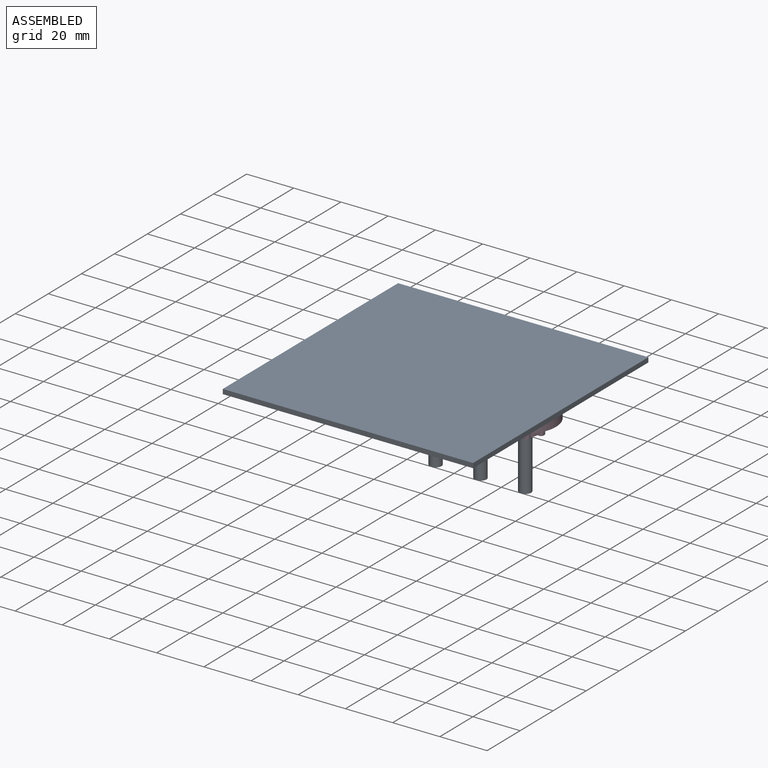
[diagram: assembled view]
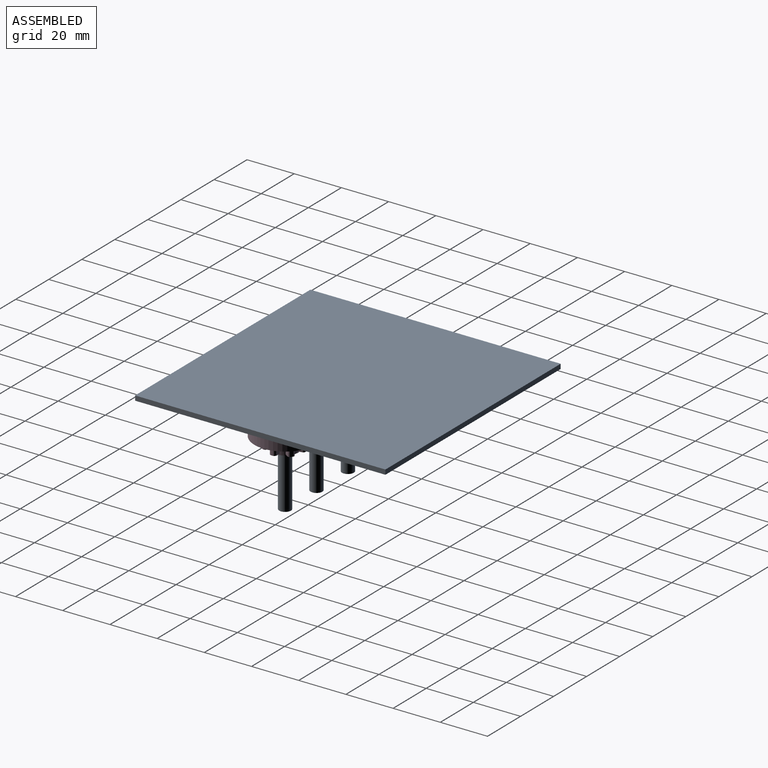
[diagram: assembled view, second angle]
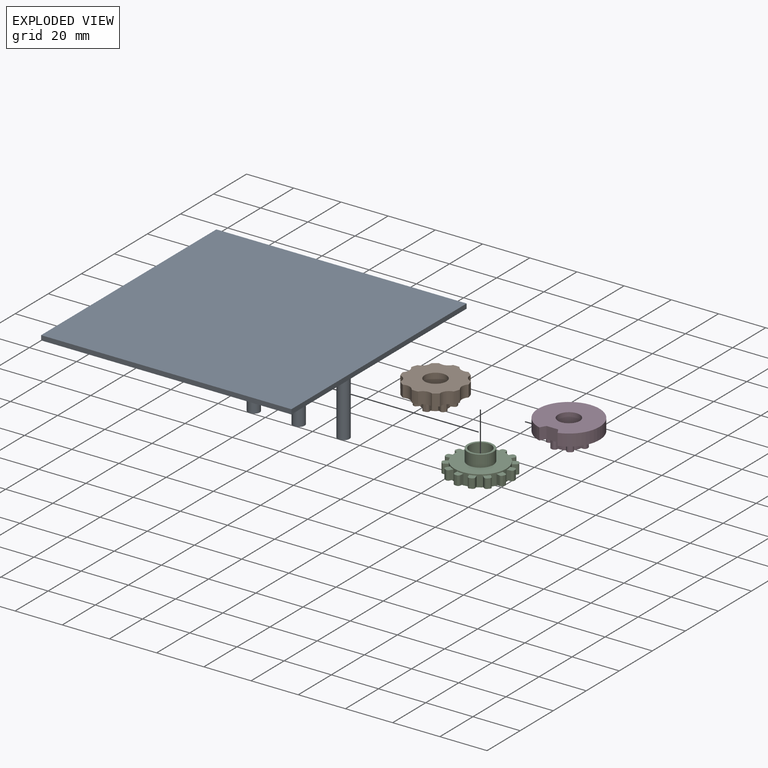
[diagram: exploded view]
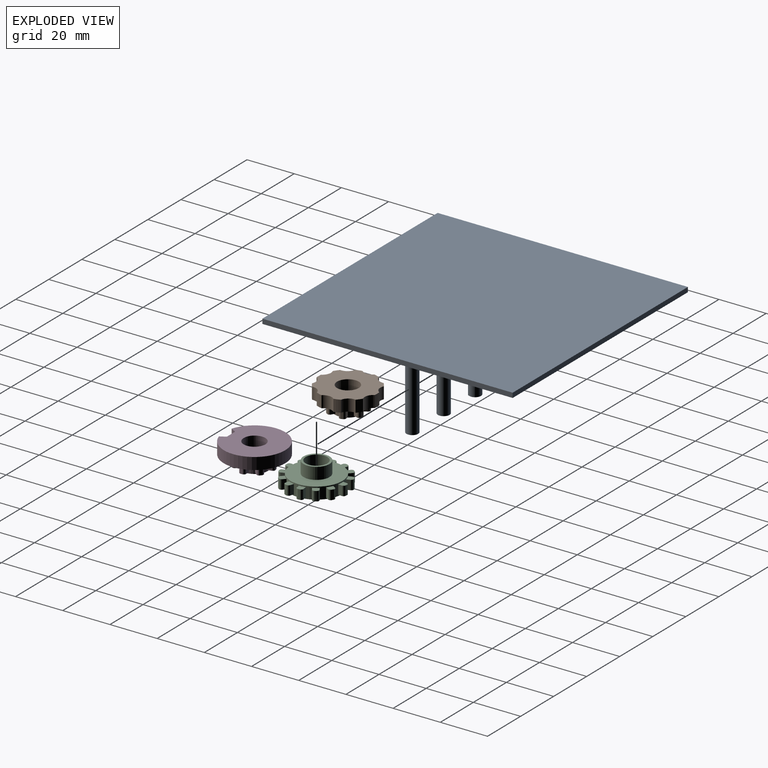
[diagram: exploded view, second angle]
ASSEMBLY  parts=4 mates=2
PART A: 12 faces, bbox 106.1x106.1x35 mm
  f0: plane 106.07x2mm, normal (1,0,0), area 212.1mm2, adj f1,f3,f4,f5
  f1: plane 106.07x2mm, normal (0,1,0), area 212.1mm2, adj f0,f2,f4,f5
  f2: plane 106.07x2mm, normal (-1,0,0), area 212.1mm2, adj f1,f3,f4,f5
  f3: plane 106.07x2mm, normal (0,-1,0), area 212.1mm2, adj f0,f2,f4,f5
  f4: plane 106.07x106.07mm, normal (0,0,1), area 11191.1mm2, adj f0,f1,f2,f3,f6,f8,f10
  f5: plane 106.07x106.07mm, normal (0,0,-1), area 11250mm2, adj f0,f1,f2,f3
  f6: cylinder r=2.5mm len=33mm, axis (0,0,-1), area 518.4mm2, adj f4,f7
  f7: plane 5x5mm, normal (0,0,1), area 19.6mm2, adj f6
  f8: cylinder r=2.5mm len=33mm, axis (0,0,-1), area 518.4mm2, adj f4,f9
  f9: plane 5x5mm, normal (0,0,1), area 19.6mm2, adj f8
  f10: cylinder r=2.5mm len=33mm, axis (0,0,-1), area 518.4mm2, adj f4,f11
  f11: plane 5x5mm, normal (0,0,1), area 19.6mm2, adj f10
PART B: 67 faces, bbox 24.5x10x25 mm
  f0: cylinder r=5.5mm len=11mm, axis (0,1,0), area 86.9mm2, adj f12,f23,f25,f26,f27,f29,f30,f31
  f1: cylinder r=12.5mm len=5mm, axis (0,-1,0), area 13.7mm2, adj f11,f12,f19,f22
  f2: cylinder r=12.5mm len=5mm, axis (0,-1,0), area 13.7mm2, adj f11,f12,f21,f22
  f3: cylinder r=12.5mm len=5mm, axis (0,-1,0), area 13.7mm2, adj f11,f12,f13,f21
  f4: cylinder r=12.5mm len=5mm, axis (0,-1,0), area 13.7mm2, adj f11,f12,f15,f20
  f5: cylinder r=12.5mm len=5mm, axis (0,-1,0), area 13.7mm2, adj f11,f12,f19,f20
  f6: cylinder r=12.5mm len=5mm, axis (0,-1,0), area 13.7mm2, adj f11,f12,f14,f18
  f7: cylinder r=12.5mm len=5mm, axis (0,-1,0), area 13.7mm2, adj f11,f12,f17,f18
  f8: cylinder r=12.5mm len=5mm, axis (0,-1,0), area 13.7mm2, adj f11,f12,f16,f17
  f9: cylinder r=12.5mm len=5mm, axis (0,-1,0), area 13.7mm2, adj f11,f12,f15,f16
  f10: cylinder r=12.5mm len=5mm, axis (0,-1,0), area 13.7mm2, adj f11,f12,f13,f14
  f11: plane 25x24.48mm, normal (0,1,0), area 381.1mm2, adj f1,f2,f3,f4,f5,f6,f7,f8
  f12: plane 25x24.48mm, normal (0,-1,0), area 307.2mm2, adj f0,f1,f2,f3,f4,f5,f6,f7
  f13: cylinder r=3.75mm len=5.08mm, axis (0,1,0), area 27.9mm2, adj f3,f10,f11,f12
  f14: cylinder r=3.75mm len=5mm, axis (0,1,0), area 27.9mm2, adj f6,f10,f11,f12
  f15: cylinder r=3.75mm len=5.08mm, axis (0,1,0), area 27.9mm2, adj f4,f9,f11,f12
  f16: cylinder r=3.75mm len=5mm, axis (0,1,0), area 27.9mm2, adj f8,f9,f11,f12
  f17: cylinder r=3.75mm len=5mm, axis (0,1,0), area 27.9mm2, adj f7,f8,f11,f12
  f18: cylinder r=3.75mm len=5mm, axis (0,1,0), area 27.9mm2, adj f6,f7,f11,f12
  f19: cylinder r=3.75mm len=5mm, axis (0,1,0), area 27.9mm2, adj f1,f5,f11,f12
  f20: cylinder r=3.75mm len=5mm, axis (0,1,0), area 27.9mm2, adj f4,f5,f11,f12
  f21: cylinder r=3.75mm len=5mm, axis (0,1,0), area 27.9mm2, adj f2,f3,f11,f12
  f22: cylinder r=3.75mm len=5mm, axis (0,1,0), area 27.9mm2, adj f1,f2,f11,f12
  f23: plane 11x11mm, normal (0,-1,0), area 28.6mm2, adj f0,f52
  f24: plane 4.5x0.7mm, normal (1,0,0), area 3.2mm2, adj f12,f27,f65,f66
  f25: plane 4.5x1.67mm, normal (0,0,1), area 7.5mm2, adj f0,f12,f27,f65
  f26: plane 4.5x1.67mm, normal (0,0,-1), area 7.5mm2, adj f0,f12,f27,f66
  f27: plane 2.7x2.67mm, normal (0,-1,0), area 6.5mm2, adj f0,f24,f25,f26,f65,f66
  f28: plane 4.5x0.55mm, normal (0.62,0,-0.78), area 3.2mm2, adj f12,f31,f63,f64
  f29: plane 4.5x1.3mm, normal (0.78,0,0.62), area 7.5mm2, adj f0,f12,f31,f64
  f30: plane 4.5x1.3mm, normal (-0.78,0,-0.62), area 7.5mm2, adj f0,f12,f31,f63
  f31: plane 3.37x3.36mm, normal (0,-1,0), area 6.5mm2, adj f0,f28,f29,f30,f63,f64
  f32: plane 4.5x0.68mm, normal (-0.22,0,-0.97), area 3.1mm2, adj f12,f35,f61,f62
  f33: plane 4.5x1.63mm, normal (0.97,0,-0.22), area 7.5mm2, adj f0,f12,f35,f62
  f34: plane 4.5x1.63mm, normal (-0.97,0,0.22), area 7.5mm2, adj f0,f12,f35,f61
  f35: plane 3.03x3mm, normal (0,-1,0), area 6.5mm2, adj f0,f32,f33,f34,f61,f62
  f36: plane 4.5x0.63mm, normal (-0.9,0,-0.43), area 3.1mm2, adj f12,f39,f59,f60
  f37: plane 4.5x1.5mm, normal (0.43,0,-0.9), area 7.5mm2, adj f0,f12,f39,f60
  f38: plane 4.5x1.5mm, normal (-0.43,0,0.9), area 7.5mm2, adj f0,f12,f39,f59
  f39: plane 3.26x3.24mm, normal (0,-1,0), area 6.5mm2, adj f0,f36,f37,f38,f59,f60
  f40: plane 4.5x0.63mm, normal (-0.9,0,0.43), area 3.1mm2, adj f12,f43,f57,f58
  f41: plane 4.5x1.5mm, normal (-0.43,0,-0.9), area 7.5mm2, adj f0,f12,f43,f58
  f42: plane 4.5x1.5mm, normal (0.43,0,0.9), area 7.5mm2, adj f0,f12,f43,f57
  f43: plane 3.26x3.24mm, normal (0,-1,0), area 6.5mm2, adj f0,f40,f41,f42,f57,f58
  f44: plane 4.5x0.68mm, normal (-0.22,0,0.97), area 3.1mm2, adj f12,f47,f55,f56
  f45: plane 4.5x1.63mm, normal (-0.97,0,-0.22), area 7.5mm2, adj f0,f12,f47,f56
  f46: plane 4.5x1.63mm, normal (0.97,0,0.22), area 7.5mm2, adj f0,f12,f47,f55
  f47: plane 3.03x3mm, normal (0,-1,0), area 6.5mm2, adj f0,f44,f45,f46,f55,f56
  f48: plane 4.5x0.55mm, normal (0.62,0,0.78), area 3.2mm2, adj f12,f51,f53,f54
  f49: plane 4.5x1.3mm, normal (-0.78,0,0.62), area 7.5mm2, adj f0,f12,f51,f54
  f50: plane 4.5x1.3mm, normal (0.78,0,-0.62), area 7.5mm2, adj f0,f12,f51,f53
  f51: plane 3.37x3.36mm, normal (0,-1,0), area 6.5mm2, adj f0,f48,f49,f50,f53,f54
  f52: cylinder r=4.6mm len=10mm, axis (0,-1,0), area 289mm2, adj f11,f23
  f53: cylinder r=1mm len=4.5mm, axis (0,1,0), area 7.1mm2, adj f12,f48,f50,f51
  f54: cylinder r=1mm len=4.5mm, axis (0,-1,0), area 7.1mm2, adj f12,f48,f49,f51
  f55: cylinder r=1mm len=4.5mm, axis (0,1,0), area 7.1mm2, adj f12,f44,f46,f47
  f56: cylinder r=1mm len=4.5mm, axis (0,-1,0), area 7.1mm2, adj f12,f44,f45,f47
  f57: cylinder r=1mm len=4.5mm, axis (0,1,0), area 7.1mm2, adj f12,f40,f42,f43
  f58: cylinder r=1mm len=4.5mm, axis (0,-1,0), area 7.1mm2, adj f12,f40,f41,f43
  f59: cylinder r=1mm len=4.5mm, axis (0,1,0), area 7.1mm2, adj f12,f36,f38,f39
  f60: cylinder r=1mm len=4.5mm, axis (0,-1,0), area 7.1mm2, adj f12,f36,f37,f39
  f61: cylinder r=1mm len=4.5mm, axis (0,1,0), area 7.1mm2, adj f12,f32,f34,f35
  f62: cylinder r=1mm len=4.5mm, axis (0,-1,0), area 7.1mm2, adj f12,f32,f33,f35
  f63: cylinder r=1mm len=4.5mm, axis (0,1,0), area 7.1mm2, adj f12,f28,f30,f31
  f64: cylinder r=1mm len=4.5mm, axis (0,-1,0), area 7.1mm2, adj f12,f28,f29,f31
  f65: cylinder r=1mm len=4.5mm, axis (0,-1,0), area 7.1mm2, adj f12,f24,f25,f27
  f66: cylinder r=1mm len=4.5mm, axis (0,1,0), area 7.1mm2, adj f12,f24,f26,f27
PART C: 104 faces, bbox 27x10x26.5 mm
  f0: cylinder r=11mm len=22mm, axis (0,-1,0), area 194mm2, adj f1,f2,f4,f5,f6,f7,f11,f12
  f1: plane 22x22mm, normal (0,1,0), area 285.1mm2, adj f0,f101
  f2: plane 22x22mm, normal (0,-1,0), area 313.7mm2, adj f0,f103
  f3: plane 4x0.7mm, normal (1,0,0), area 2.8mm2, adj f6,f7,f8,f9
  f4: plane 4x1.58mm, normal (0,0,1), area 6.3mm2, adj f0,f6,f7,f8
  f5: plane 4x1.58mm, normal (0,0,-1), area 6.3mm2, adj f0,f6,f7,f9
  f6: plane 2.7x2.58mm, normal (0,1,0), area 6.4mm2, adj f0,f3,f4,f5,f8,f9
  f7: plane 2.7x2.58mm, normal (0,-1,0), area 6.4mm2, adj f0,f3,f4,f5,f8,f9
  f8: cylinder r=1mm len=4mm, axis (0,1,0), area 6.3mm2, adj f3,f4,f6,f7
  f9: cylinder r=1mm len=4mm, axis (0,-1,0), area 6.3mm2, adj f3,f5,f6,f7
  f10: plane 4x0.63mm, normal (0.9,0,0.43), area 2.8mm2, adj f13,f14,f15,f16
  f11: plane 4x1.43mm, normal (-0.43,0,0.9), area 6.3mm2, adj f0,f13,f14,f15
  f12: plane 4x1.43mm, normal (0.43,0,-0.9), area 6.3mm2, adj f0,f13,f14,f16
  f13: plane 3.22x3.16mm, normal (0,1,0), area 6.4mm2, adj f0,f10,f11,f12,f15,f16
  f14: plane 3.22x3.16mm, normal (0,-1,0), area 6.4mm2, adj f0,f10,f11,f12,f15,f16
  f15: cylinder r=1mm len=4mm, axis (0,1,0), area 6.3mm2, adj f10,f11,f13,f14
  f16: cylinder r=1mm len=4mm, axis (0,-1,0), area 6.3mm2, adj f10,f12,f13,f14
  f17: plane 4x0.55mm, normal (0.62,0,0.78), area 2.8mm2, adj f20,f21,f22,f23
  f18: plane 4x1.24mm, normal (-0.78,0,0.62), area 6.3mm2, adj f0,f20,f21,f22
  f19: plane 4x1.24mm, normal (0.78,0,-0.62), area 6.3mm2, adj f0,f20,f21,f23
  f20: plane 3.32x3.3mm, normal (0,1,0), area 6.4mm2, adj f0,f17,f18,f19,f22,f23
  f21: plane 3.32x3.3mm, normal (0,-1,0), area 6.4mm2, adj f0,f17,f18,f19,f22,f23
  f22: cylinder r=1mm len=4mm, axis (0,1,0), area 6.3mm2, adj f17,f18,f20,f21
  f23: cylinder r=1mm len=4mm, axis (0,-1,0), area 6.3mm2, adj f17,f19,f20,f21
  f24: plane 4x0.68mm, normal (0.22,0,0.97), area 2.8mm2, adj f27,f28,f29,f30
  f25: plane 4x1.54mm, normal (-0.97,0,0.22), area 6.3mm2, adj f0,f27,f28,f29
  f26: plane 4x1.54mm, normal (0.97,0,-0.22), area 6.3mm2, adj f0,f27,f28,f30
  f27: plane 3.01x2.92mm, normal (0,1,0), area 6.4mm2, adj f0,f24,f25,f26,f29,f30
  f28: plane 3.01x2.92mm, normal (0,-1,0), area 6.4mm2, adj f0,f24,f25,f26,f29,f30
  f29: cylinder r=1mm len=4mm, axis (0,1,0), area 6.3mm2, adj f24,f25,f27,f28
  f30: cylinder r=1mm len=4mm, axis (0,-1,0), area 6.3mm2, adj f24,f26,f27,f28
  f31: plane 4x0.68mm, normal (-0.22,0,0.97), area 2.8mm2, adj f34,f35,f36,f37
  f32: plane 4x1.54mm, normal (-0.97,0,-0.22), area 6.3mm2, adj f0,f34,f35,f36
  f33: plane 4x1.54mm, normal (0.97,0,0.22), area 6.3mm2, adj f0,f34,f35,f37
  f34: plane 3.01x2.92mm, normal (0,1,0), area 6.4mm2, adj f0,f31,f32,f33,f36,f37
  f35: plane 3.01x2.92mm, normal (0,-1,0), area 6.4mm2, adj f0,f31,f32,f33,f36,f37
  f36: cylinder r=1mm len=4mm, axis (0,1,0), area 6.3mm2, adj f31,f32,f34,f35
  f37: cylinder r=1mm len=4mm, axis (0,-1,0), area 6.3mm2, adj f31,f33,f34,f35
  f38: plane 4x0.55mm, normal (-0.62,0,0.78), area 2.8mm2, adj f41,f42,f43,f44
  f39: plane 4x1.24mm, normal (-0.78,0,-0.62), area 6.3mm2, adj f0,f41,f42,f43
  f40: plane 4x1.24mm, normal (0.78,0,0.62), area 6.3mm2, adj f0,f41,f42,f44
  f41: plane 3.32x3.3mm, normal (0,1,0), area 6.4mm2, adj f0,f38,f39,f40,f43,f44
  f42: plane 3.32x3.3mm, normal (0,-1,0), area 6.4mm2, adj f0,f38,f39,f40,f43,f44
  f43: cylinder r=1mm len=4mm, axis (0,1,0), area 6.3mm2, adj f38,f39,f41,f42
  f44: cylinder r=1mm len=4mm, axis (0,-1,0), area 6.3mm2, adj f38,f40,f41,f42
  f45: plane 4x0.63mm, normal (-0.9,0,0.43), area 2.8mm2, adj f48,f49,f50,f51
  f46: plane 4x1.43mm, normal (-0.43,0,-0.9), area 6.3mm2, adj f0,f48,f49,f50
  f47: plane 4x1.43mm, normal (0.43,0,0.9), area 6.3mm2, adj f0,f48,f49,f51
  f48: plane 3.22x3.16mm, normal (0,1,0), area 6.4mm2, adj f0,f45,f46,f47,f50,f51
  f49: plane 3.22x3.16mm, normal (0,-1,0), area 6.4mm2, adj f0,f45,f46,f47,f50,f51
  f50: cylinder r=1mm len=4mm, axis (0,1,0), area 6.3mm2, adj f45,f46,f48,f49
  f51: cylinder r=1mm len=4mm, axis (0,-1,0), area 6.3mm2, adj f45,f47,f48,f49
  f52: plane 4x0.7mm, normal (-1,0,0), area 2.8mm2, adj f55,f56,f57,f58
  f53: plane 4x1.58mm, normal (0,0,-1), area 6.3mm2, adj f0,f55,f56,f57
  f54: plane 4x1.58mm, normal (0,0,1), area 6.3mm2, adj f0,f55,f56,f58
  f55: plane 2.7x2.58mm, normal (0,1,0), area 6.4mm2, adj f0,f52,f53,f54,f57,f58
  f56: plane 2.7x2.58mm, normal (0,-1,0), area 6.4mm2, adj f0,f52,f53,f54,f57,f58
  f57: cylinder r=1mm len=4mm, axis (0,1,0), area 6.3mm2, adj f52,f53,f55,f56
  f58: cylinder r=1mm len=4mm, axis (0,-1,0), area 6.3mm2, adj f52,f54,f55,f56
  f59: plane 4x0.63mm, normal (-0.9,0,-0.43), area 2.8mm2, adj f62,f63,f64,f65
  f60: plane 4x1.43mm, normal (0.43,0,-0.9), area 6.3mm2, adj f0,f62,f63,f64
  f61: plane 4x1.43mm, normal (-0.43,0,0.9), area 6.3mm2, adj f0,f62,f63,f65
  f62: plane 3.22x3.16mm, normal (0,1,0), area 6.4mm2, adj f0,f59,f60,f61,f64,f65
  f63: plane 3.22x3.16mm, normal (0,-1,0), area 6.4mm2, adj f0,f59,f60,f61,f64,f65
  f64: cylinder r=1mm len=4mm, axis (0,1,0), area 6.3mm2, adj f59,f60,f62,f63
  f65: cylinder r=1mm len=4mm, axis (0,-1,0), area 6.3mm2, adj f59,f61,f62,f63
  f66: plane 4x0.55mm, normal (-0.62,0,-0.78), area 2.8mm2, adj f69,f70,f71,f72
  f67: plane 4x1.24mm, normal (0.78,0,-0.62), area 6.3mm2, adj f0,f69,f70,f71
  f68: plane 4x1.24mm, normal (-0.78,0,0.62), area 6.3mm2, adj f0,f69,f70,f72
  f69: plane 3.32x3.3mm, normal (0,1,0), area 6.4mm2, adj f0,f66,f67,f68,f71,f72
  f70: plane 3.32x3.3mm, normal (0,-1,0), area 6.4mm2, adj f0,f66,f67,f68,f71,f72
  f71: cylinder r=1mm len=4mm, axis (0,1,0), area 6.3mm2, adj f66,f67,f69,f70
  f72: cylinder r=1mm len=4mm, axis (0,-1,0), area 6.3mm2, adj f66,f68,f69,f70
  f73: plane 4x0.68mm, normal (-0.22,0,-0.97), area 2.8mm2, adj f76,f77,f78,f79
  f74: plane 4x1.54mm, normal (0.97,0,-0.22), area 6.3mm2, adj f0,f76,f77,f78
  f75: plane 4x1.54mm, normal (-0.97,0,0.22), area 6.3mm2, adj f0,f76,f77,f79
  f76: plane 3.01x2.92mm, normal (0,1,0), area 6.4mm2, adj f0,f73,f74,f75,f78,f79
  f77: plane 3.01x2.92mm, normal (0,-1,0), area 6.4mm2, adj f0,f73,f74,f75,f78,f79
  f78: cylinder r=1mm len=4mm, axis (0,1,0), area 6.3mm2, adj f73,f74,f76,f77
  f79: cylinder r=1mm len=4mm, axis (0,-1,0), area 6.3mm2, adj f73,f75,f76,f77
  f80: plane 4x0.68mm, normal (0.22,0,-0.97), area 2.8mm2, adj f83,f84,f85,f86
  f81: plane 4x1.54mm, normal (0.97,0,0.22), area 6.3mm2, adj f0,f83,f84,f85
  f82: plane 4x1.54mm, normal (-0.97,0,-0.22), area 6.3mm2, adj f0,f83,f84,f86
  f83: plane 3.01x2.92mm, normal (0,1,0), area 6.4mm2, adj f0,f80,f81,f82,f85,f86
  f84: plane 3.01x2.92mm, normal (0,-1,0), area 6.4mm2, adj f0,f80,f81,f82,f85,f86
  f85: cylinder r=1mm len=4mm, axis (0,1,0), area 6.3mm2, adj f80,f81,f83,f84
  f86: cylinder r=1mm len=4mm, axis (0,-1,0), area 6.3mm2, adj f80,f82,f83,f84
  f87: plane 4x0.55mm, normal (0.62,0,-0.78), area 2.8mm2, adj f90,f91,f92,f93
  f88: plane 4x1.24mm, normal (0.78,0,0.62), area 6.3mm2, adj f0,f90,f91,f92
  f89: plane 4x1.24mm, normal (-0.78,0,-0.62), area 6.3mm2, adj f0,f90,f91,f93
  f90: plane 3.32x3.3mm, normal (0,1,0), area 6.4mm2, adj f0,f87,f88,f89,f92,f93
  f91: plane 3.32x3.3mm, normal (0,-1,0), area 6.4mm2, adj f0,f87,f88,f89,f92,f93
  f92: cylinder r=1mm len=4mm, axis (0,1,0), area 6.3mm2, adj f87,f88,f90,f91
  f93: cylinder r=1mm len=4mm, axis (0,-1,0), area 6.3mm2, adj f87,f89,f90,f91
  f94: plane 4x0.63mm, normal (0.9,0,-0.43), area 2.8mm2, adj f97,f98,f99,f100
  f95: plane 4x1.43mm, normal (0.43,0,0.9), area 6.3mm2, adj f0,f97,f98,f99
  f96: plane 4x1.43mm, normal (-0.43,0,-0.9), area 6.3mm2, adj f0,f97,f98,f100
  f97: plane 3.22x3.16mm, normal (0,1,0), area 6.4mm2, adj f0,f94,f95,f96,f99,f100
  f98: plane 3.22x3.16mm, normal (0,-1,0), area 6.4mm2, adj f0,f94,f95,f96,f99,f100
  f99: cylinder r=1mm len=4mm, axis (0,1,0), area 6.3mm2, adj f94,f95,f97,f98
  f100: cylinder r=1mm len=4mm, axis (0,-1,0), area 6.3mm2, adj f94,f96,f97,f98
  f101: cylinder r=5.5mm len=11mm, axis (0,-1,0), area 172.8mm2, adj f1,f102
  f102: plane 11x11mm, normal (0,1,0), area 28.6mm2, adj f101,f103
  f103: cylinder r=4.6mm len=10mm, axis (0,-1,0), area 289mm2, adj f2,f102
PART D: 51 faces, bbox 26x10x25.4 mm
  f0: cylinder r=13mm len=26mm, axis (0,-1,0), area 368.9mm2, adj f1,f3,f49,f50
  f1: plane 26x25.41mm, normal (0,-1,0), area 372.1mm2, adj f0,f2,f5,f6,f7,f9,f10,f11
  f2: cylinder r=5.5mm len=11mm, axis (0,1,0), area 86.9mm2, adj f1,f4,f6,f7,f8,f12,f13,f14
  f3: plane 26x25.41mm, normal (0,1,0), area 446mm2, adj f0,f47,f48,f49,f50
  f4: plane 11x11mm, normal (0,-1,0), area 28.6mm2, adj f2,f47
  f5: plane 4.5x0.7mm, normal (1,0,0), area 3.2mm2, adj f1,f8,f9,f10
  f6: plane 4.5x1.67mm, normal (0,0,1), area 7.5mm2, adj f1,f2,f8,f9
  f7: plane 4.5x1.67mm, normal (0,0,-1), area 7.5mm2, adj f1,f2,f8,f10
  f8: plane 2.7x2.67mm, normal (0,-1,0), area 6.5mm2, adj f2,f5,f6,f7,f9,f10
  f9: cylinder r=1mm len=4.5mm, axis (0,-1,0), area 7.1mm2, adj f1,f5,f6,f8
  f10: cylinder r=1mm len=4.5mm, axis (0,1,0), area 7.1mm2, adj f1,f5,f7,f8
  f11: plane 4.5x0.55mm, normal (0.62,0,-0.78), area 3.2mm2, adj f1,f14,f15,f16
  f12: plane 4.5x1.3mm, normal (0.78,0,0.62), area 7.5mm2, adj f1,f2,f14,f15
  f13: plane 4.5x1.3mm, normal (-0.78,0,-0.62), area 7.5mm2, adj f1,f2,f14,f16
  f14: plane 3.37x3.36mm, normal (0,-1,0), area 6.5mm2, adj f2,f11,f12,f13,f15,f16
  f15: cylinder r=1mm len=4.5mm, axis (0,-1,0), area 7.1mm2, adj f1,f11,f12,f14
  f16: cylinder r=1mm len=4.5mm, axis (0,1,0), area 7.1mm2, adj f1,f11,f13,f14
  f17: plane 4.5x0.68mm, normal (-0.22,0,-0.97), area 3.1mm2, adj f1,f20,f21,f22
  f18: plane 4.5x1.63mm, normal (0.97,0,-0.22), area 7.5mm2, adj f1,f2,f20,f21
  f19: plane 4.5x1.63mm, normal (-0.97,0,0.22), area 7.5mm2, adj f1,f2,f20,f22
  f20: plane 3.03x3mm, normal (0,-1,0), area 6.5mm2, adj f2,f17,f18,f19,f21,f22
  f21: cylinder r=1mm len=4.5mm, axis (0,-1,0), area 7.1mm2, adj f1,f17,f18,f20
  f22: cylinder r=1mm len=4.5mm, axis (0,1,0), area 7.1mm2, adj f1,f17,f19,f20
  f23: plane 4.5x0.63mm, normal (-0.9,0,-0.43), area 3.1mm2, adj f1,f26,f27,f28
  f24: plane 4.5x1.5mm, normal (0.43,0,-0.9), area 7.5mm2, adj f1,f2,f26,f27
  f25: plane 4.5x1.5mm, normal (-0.43,0,0.9), area 7.5mm2, adj f1,f2,f26,f28
  f26: plane 3.26x3.24mm, normal (0,-1,0), area 6.5mm2, adj f2,f23,f24,f25,f27,f28
  f27: cylinder r=1mm len=4.5mm, axis (0,-1,0), area 7.1mm2, adj f1,f23,f24,f26
  f28: cylinder r=1mm len=4.5mm, axis (0,1,0), area 7.1mm2, adj f1,f23,f25,f26
  f29: plane 4.5x0.63mm, normal (-0.9,0,0.43), area 3.1mm2, adj f1,f32,f33,f34
  f30: plane 4.5x1.5mm, normal (-0.43,0,-0.9), area 7.5mm2, adj f1,f2,f32,f33
  f31: plane 4.5x1.5mm, normal (0.43,0,0.9), area 7.5mm2, adj f1,f2,f32,f34
  f32: plane 3.26x3.24mm, normal (0,-1,0), area 6.5mm2, adj f2,f29,f30,f31,f33,f34
  f33: cylinder r=1mm len=4.5mm, axis (0,-1,0), area 7.1mm2, adj f1,f29,f30,f32
  f34: cylinder r=1mm len=4.5mm, axis (0,1,0), area 7.1mm2, adj f1,f29,f31,f32
  f35: plane 4.5x0.68mm, normal (-0.22,0,0.97), area 3.1mm2, adj f1,f38,f39,f40
  f36: plane 4.5x1.63mm, normal (-0.97,0,-0.22), area 7.5mm2, adj f1,f2,f38,f39
  f37: plane 4.5x1.63mm, normal (0.97,0,0.22), area 7.5mm2, adj f1,f2,f38,f40
  f38: plane 3.03x3mm, normal (0,-1,0), area 6.5mm2, adj f2,f35,f36,f37,f39,f40
  f39: cylinder r=1mm len=4.5mm, axis (0,-1,0), area 7.1mm2, adj f1,f35,f36,f38
  f40: cylinder r=1mm len=4.5mm, axis (0,1,0), area 7.1mm2, adj f1,f35,f37,f38
  f41: plane 4.5x0.55mm, normal (0.62,0,0.78), area 3.2mm2, adj f1,f44,f45,f46
  f42: plane 4.5x1.3mm, normal (-0.78,0,0.62), area 7.5mm2, adj f1,f2,f44,f45
  f43: plane 4.5x1.3mm, normal (0.78,0,-0.62), area 7.5mm2, adj f1,f2,f44,f46
  f44: plane 3.37x3.36mm, normal (0,-1,0), area 6.5mm2, adj f2,f41,f42,f43,f45,f46
  f45: cylinder r=1mm len=4.5mm, axis (0,-1,0), area 7.1mm2, adj f1,f41,f42,f44
  f46: cylinder r=1mm len=4.5mm, axis (0,1,0), area 7.1mm2, adj f1,f41,f43,f44
  f47: cylinder r=4.6mm len=10mm, axis (0,-1,0), area 289mm2, adj f3,f4
  f48: plane 5x5mm, normal (0,0,1), area 25mm2, adj f1,f3,f49,f50
  f49: plane 5x2.41mm, normal (0.87,0,0.5), area 13.9mm2, adj f0,f1,f3,f48
  f50: plane 5x2.41mm, normal (-0.87,0,0.5), area 13.9mm2, adj f0,f1,f3,f48
PLACE A rot(axis=(0,-1,0),180deg) t=(33.41,-21.8,-30.13)mm
PLACE B rot(axis=(0.7,0.5,0.5),110deg) t=(33.41,-21.8,-34.63)mm
PLACE C rot(axis=(0.98,-0.15,-0.15),91.3deg) t=(52.41,-21.8,-39.63)mm
PLACE D rot(axis=(1,0,0),90deg) t=(71.41,-21.8,-34.63)mm
MATE revolute A.f8 <-> B.f1  axis (0,0,1) through (33.41,-21.8,-32.13)mm
MATE revolute A.f6 <-> D.f0  axis (0,0,-1) through (71.41,-21.8,-32.13)mm
